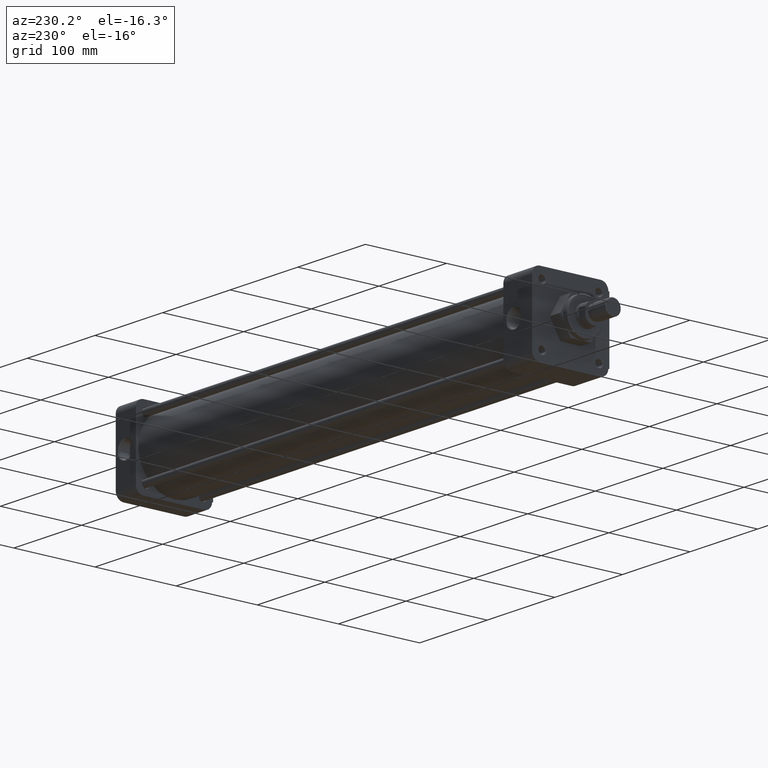
[diagram: clean part render]
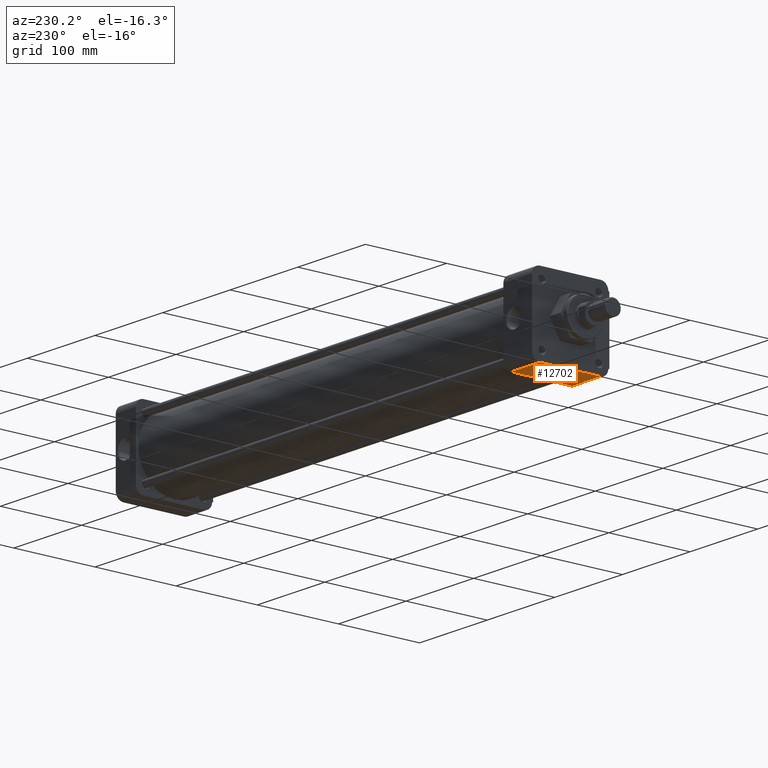
[diagram: same view with one face highlighted and labeled with its STEP entity id]
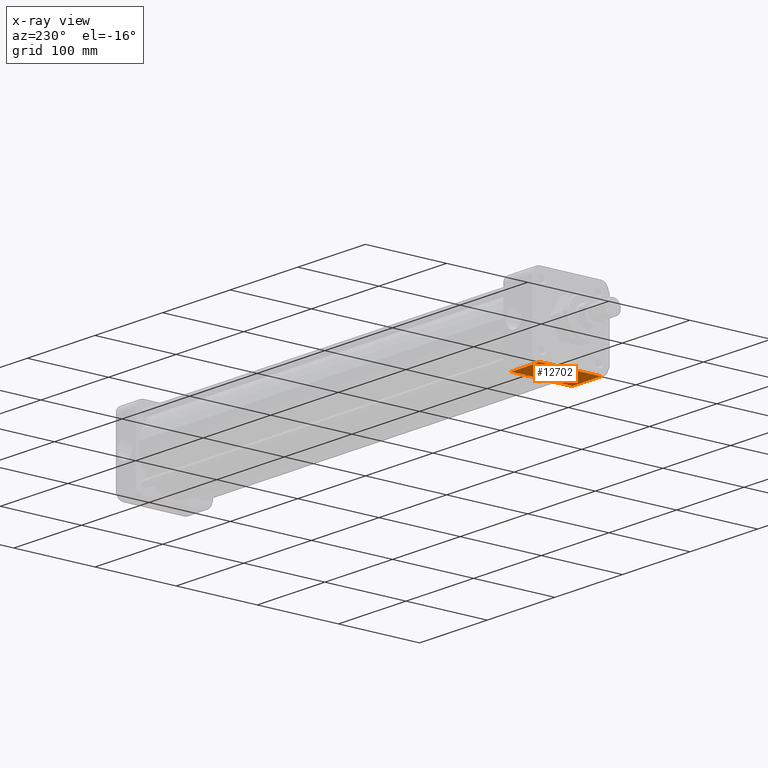
[diagram: x-ray of the same camera — body ghosted, the highlighted face saturated]
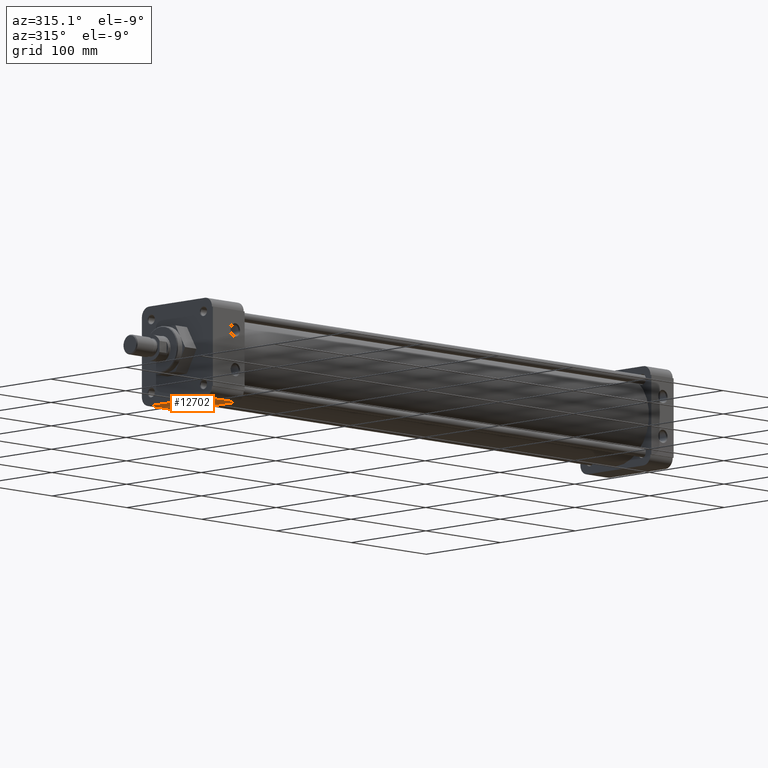
[diagram: same view with one face highlighted and labeled with its STEP entity id]
A machine part, auxiliary view. The second image highlights one B-rep face of the part: STEP entity #12702.
The next image is the same camera in x-ray: the body ghosted, the highlighted face saturated — about 0% of this face is hidden behind the body in this view.
A second angle (auxiliary view) of the same face is appended — the face is thin or edge-on in the first view.
In plain terms, the highlighted planar face has unit normal (0, 0, 1).
Its self-contained STEP definition (entity closure, byte-faithful):
#1101 = CARTESIAN_POINT ( 'NONE',  ( 0.0000000000000000000, -1.453124999999999800, -1.875000000000000000 ) ) ;
#1194 = EDGE_CURVE ( 'NONE', #5901, #11524, #11963, .T. ) ;
#1480 = ORIENTED_EDGE ( 'NONE', *, *, #6841, .T. ) ;
#1903 = VECTOR ( 'NONE', #3549, 39.37007874015748100 ) ;
#2735 = VERTEX_POINT ( 'NONE', #1101 ) ;
#2921 = VECTOR ( 'NONE', #11722, 39.37007874015748100 ) ;
#3074 = CARTESIAN_POINT ( 'NONE',  ( 1.669999999999999900, -1.453125000000000000, -1.875000000000000000 ) ) ;
#3415 = DIRECTION ( 'NONE',  ( -0.0000000000000000000, 1.000000000000000000, 0.0000000000000000000 ) ) ;
#3549 = DIRECTION ( 'NONE',  ( -0.0000000000000000000, 1.000000000000000000, 0.0000000000000000000 ) ) ;
#3597 = CARTESIAN_POINT ( 'NONE',  ( 0.0000000000000000000, 1.499999999999999800, -1.875000000000000000 ) ) ;
#3804 = CARTESIAN_POINT ( 'NONE',  ( 1.669999999999999900, -1.453125000000000000, -1.875000000000000000 ) ) ;
#3982 = VECTOR ( 'NONE', #3415, 39.37007874015748100 ) ;
#4330 = VECTOR ( 'NONE', #13292, 39.37007874015748100 ) ;
#4343 = LINE ( 'NONE', #10239, #3982 ) ;
#4658 = ORIENTED_EDGE ( 'NONE', *, *, #4710, .F. ) ;
#4710 = EDGE_CURVE ( 'NONE', #8991, #5901, #4343, .T. ) ;
#4934 = DIRECTION ( 'NONE',  ( 1.000000000000000000, 0.0000000000000000000, -0.0000000000000000000 ) ) ;
#5509 = EDGE_LOOP ( 'NONE', ( #7993, #4658, #14395, #1480 ) ) ;
#5901 = VERTEX_POINT ( 'NONE', #9621 ) ;
#6433 = CARTESIAN_POINT ( 'NONE',  ( 1.669999999999999900, -1.453125000000000000, -1.875000000000000000 ) ) ;
#6841 = EDGE_CURVE ( 'NONE', #2735, #11524, #10929, .T. ) ;
#7365 = LINE ( 'NONE', #6433, #4330 ) ;
#7454 = EDGE_CURVE ( 'NONE', #2735, #8991, #7365, .T. ) ;
#7993 = ORIENTED_EDGE ( 'NONE', *, *, #1194, .F. ) ;
#8991 = VERTEX_POINT ( 'NONE', #3074 ) ;
#9621 = CARTESIAN_POINT ( 'NONE',  ( 1.669999999999999900, 1.499999999999999800, -1.875000000000000700 ) ) ;
#10239 = CARTESIAN_POINT ( 'NONE',  ( 1.669999999999999900, -1.453125000000000000, -1.875000000000000000 ) ) ;
#10480 = PLANE ( 'NONE',  #13036 ) ;
#10929 = LINE ( 'NONE', #3597, #1903 ) ;
#11005 = CARTESIAN_POINT ( 'NONE',  ( 0.0000000000000000000, 1.499999999999999800, -1.875000000000000700 ) ) ;
#11524 = VERTEX_POINT ( 'NONE', #11005 ) ;
#11722 = DIRECTION ( 'NONE',  ( -1.000000000000000000, 0.0000000000000000000, 0.0000000000000000000 ) ) ;
#11728 = DIRECTION ( 'NONE',  ( 0.0000000000000000000, 0.0000000000000000000, 1.000000000000000000 ) ) ;
#11963 = LINE ( 'NONE', #12620, #2921 ) ;
#12092 = FACE_OUTER_BOUND ( 'NONE', #5509, .T. ) ;
#12620 = CARTESIAN_POINT ( 'NONE',  ( 1.669999999999999900, 1.499999999999999800, -1.875000000000000900 ) ) ;
#12702 = ADVANCED_FACE ( 'NONE', ( #12092 ), #10480, .F. ) ;
#13036 = AXIS2_PLACEMENT_3D ( 'NONE', #3804, #11728, #4934 ) ;
#13292 = DIRECTION ( 'NONE',  ( 1.000000000000000000, 0.0000000000000000000, -0.0000000000000000000 ) ) ;
#14395 = ORIENTED_EDGE ( 'NONE', *, *, #7454, .F. ) ;